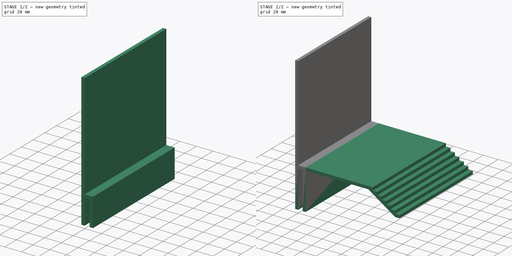
[diagram: build sequence overview — one tinted view per stage of 2, left to right]
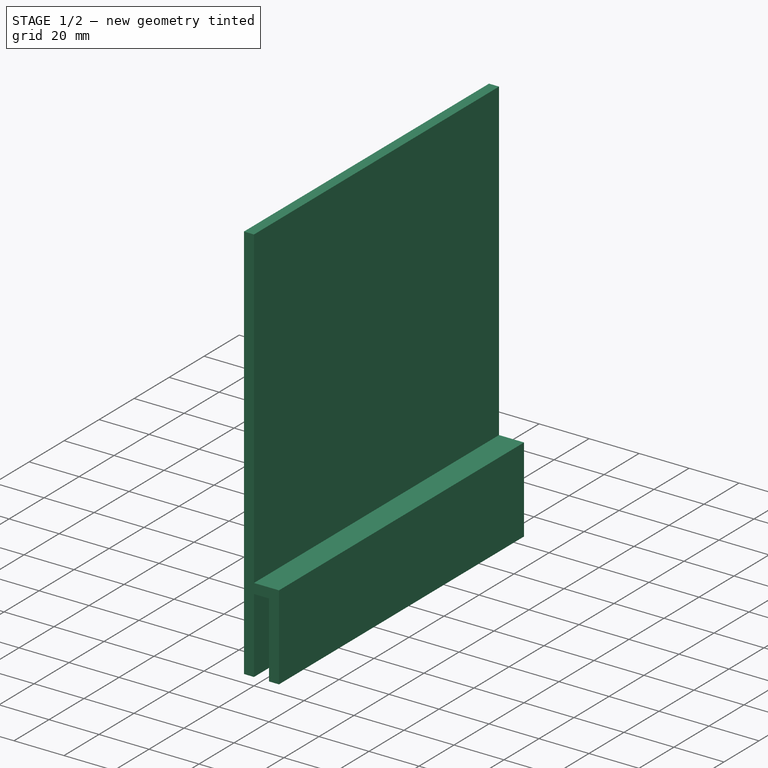
[diagram: stage 1 of 2 — iso view after this stage's code; geometry added in this stage tinted green]
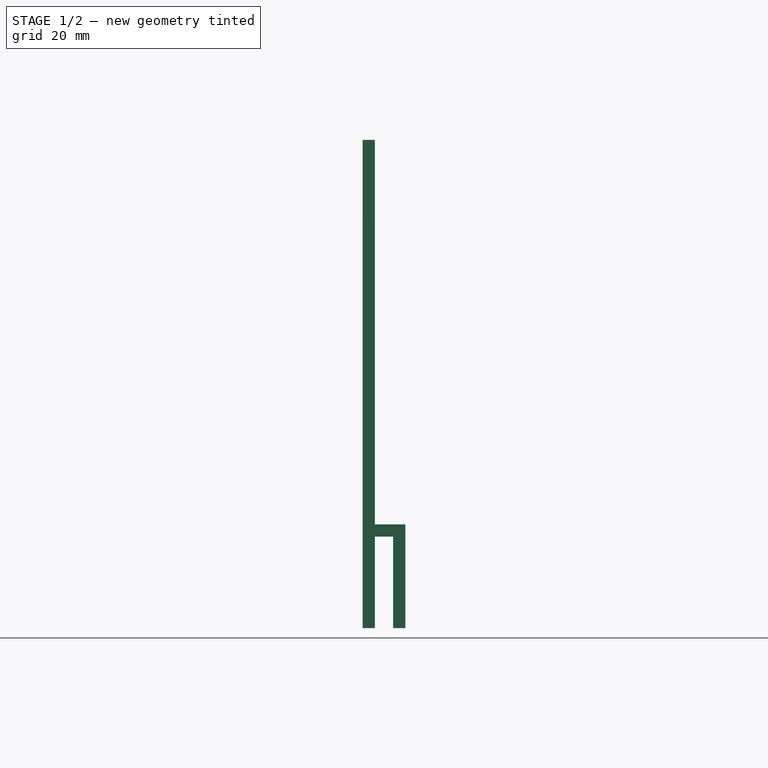
[diagram: stage 1 of 2 — front view after this stage's code; geometry added in this stage tinted green]
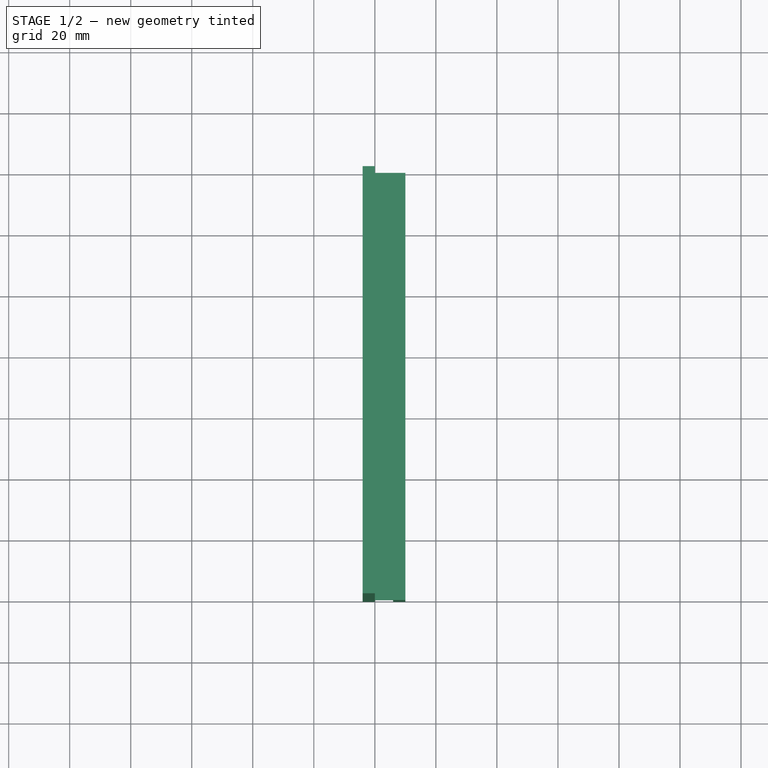
[diagram: stage 1 of 2 — top view after this stage's code; geometry added in this stage tinted green]
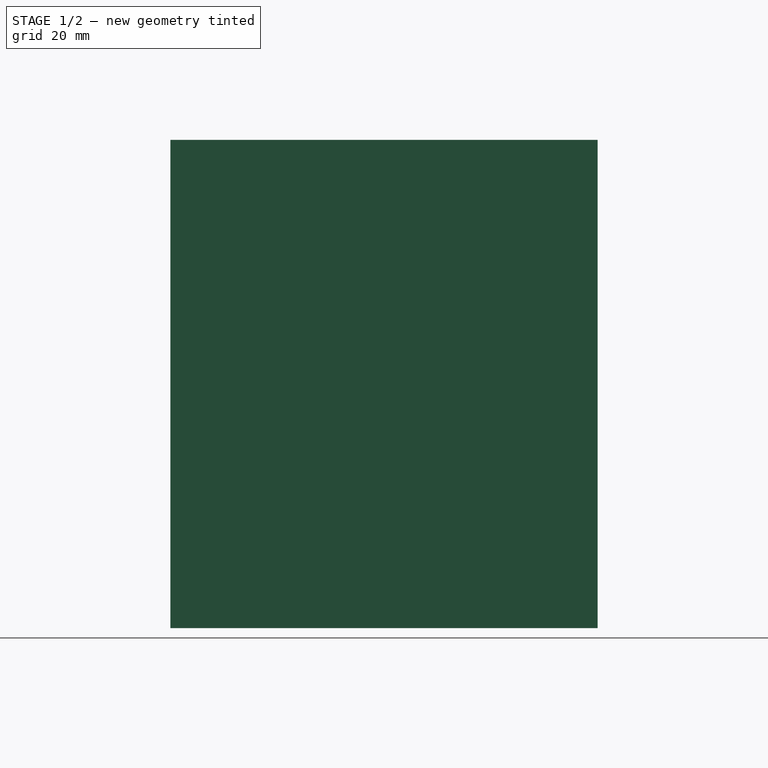
[diagram: stage 1 of 2 — right view after this stage's code; geometry added in this stage tinted green]
FCSTD DOCUMENT  (FreeCAD 0.21R33771 (Git))
Label: turtle_safer
License: All rights reserved
LicenseURL: http://en.wikipedia.org/wiki/All_rights_reserved
objects: Sketcher::SketchObject×2, PartDesign::Pad×2, PartDesign::Body×2
note: 8 computed .brp shape members not serialized (recipe doc carries the construction recipe); baked Part::Feature solids carry a one-line shape summary decoded from their .brp

FEATURE [PartDesign::Body] Body  label="turtle_with_food"
  Group = -> [Sketch,Pad]
  Origin = -> Origin
  Tip = -> Pad
FEATURE [Sketcher::SketchObject] Sketch001
  FullyConstrained = true
  MapMode = 5
  Placement = pos=(0,0,0) rot=(1,0,0;1.5708rad)
  Support = -> [XZ_Plane001]
  sketch-geometry (12):
    g0: LineSegment StartX=0 StartY=130 StartZ=0 EndX=-4 EndY=130 EndZ=0
    g1: LineSegment StartX=-4 StartY=130 StartZ=0 EndX=-4 EndY=-30 EndZ=0
    g2: LineSegment StartX=-4 StartY=-30 StartZ=0 EndX=0 EndY=-30 EndZ=0
    g3: LineSegment StartX=0 StartY=-30 StartZ=0 EndX=0 EndY=0 EndZ=0
    g4: LineSegment StartX=6 StartY=0 StartZ=0 EndX=6 EndY=-30 EndZ=0
    g5: LineSegment StartX=6 StartY=-30 StartZ=0 EndX=10 EndY=-30 EndZ=0
    g6: LineSegment StartX=10 StartY=-30 StartZ=0 EndX=10 EndY=0 EndZ=0
    g7: LineSegment StartX=0 StartY=0 StartZ=0 EndX=6 EndY=0 EndZ=0
    g8: GeomPoint X=0 Y=0 Z=0
    g9: LineSegment StartX=0 StartY=130 StartZ=0 EndX=0 EndY=4 EndZ=0
    g10: LineSegment StartX=10 StartY=0 StartZ=0 EndX=10 EndY=4 EndZ=0
    g11: LineSegment StartX=0 StartY=4 StartZ=0 EndX=10 EndY=4 EndZ=0
  constraints (33):
    c: PointOnObject(g0,g-2)
    c: Horizontal(g0)
    c: Coincident(g0,g1)
    c: Vertical(g1)
    c: Coincident(g1,g2)
    c: PointOnObject(g2,g-2)
    c: Coincident(g2,g3)
    c: Coincident(g3,g-1)
    c: PointOnObject(g4,g-1)
    c: Vertical(g4)
    c: Coincident(g4,g5)
    c: Coincident(g5,g6)
    c: Vertical(g6)
    c: Equal(g0,g2)
    c: Equal(g2,g5)
    c: Horizontal(g5)
    c: DistanceX(g2,g2) = 4
    c: Coincident(g7,g3)
    c: Coincident(g7,g4)
    c: DistanceX(g7,g7) = 6
    c: DistanceY(g4,g4) = 30
    c: Equal(g3,g4)
    c: DistanceY(g1,g1) = 160
    c: Coincident(g8,g3)
    c: DistanceY(g3,g9) = 4
    c: Coincident(g9,g0)
    c: Vertical(g9)
    c: Horizontal(g6,g4)
    c: Coincident(g10,g6)
    c: Vertical(g10)
    c: Coincident(g11,g9)
    c: Coincident(g11,g10)
    c: Horizontal(g11)
FEATURE [PartDesign::Pad] Pad001
  Direction = (0,-1,-2e-16)
  Length = 140
  Length2 = 10
  Placement = pos=(0,0,0) rot=(1,0,0;1.5708rad)
  Profile = -> Sketch001
  ReferenceAxis = -> Sketch001 [N_Axis]
  Type = 0
FEATURE [PartDesign::Body] Body001  label="safer"
  Group = -> [Sketch001,Pad001]
  Origin = -> Origin001
  Tip = -> Pad001
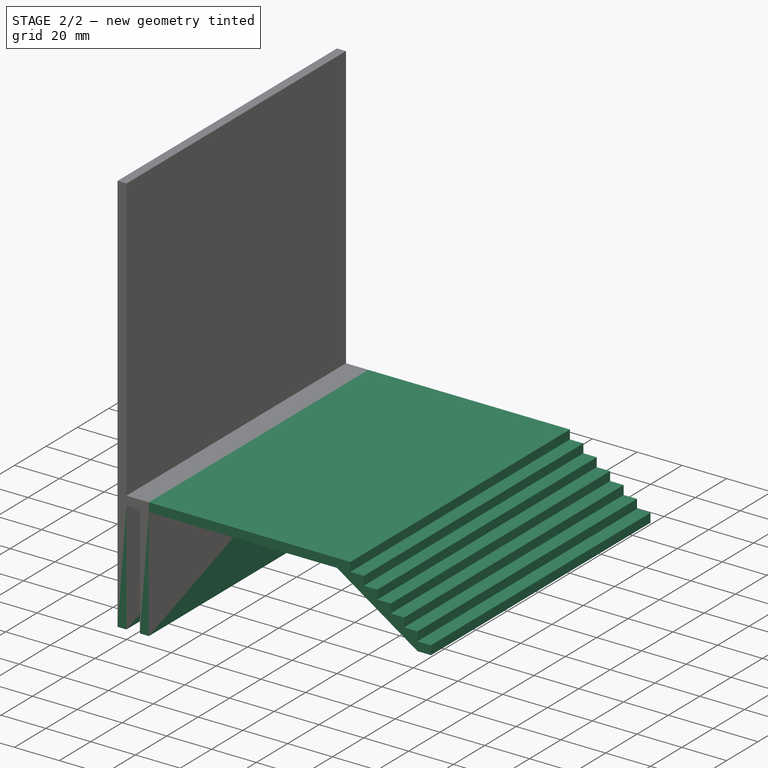
[diagram: stage 2 of 2 — iso view after this stage's code; geometry added in this stage tinted green]
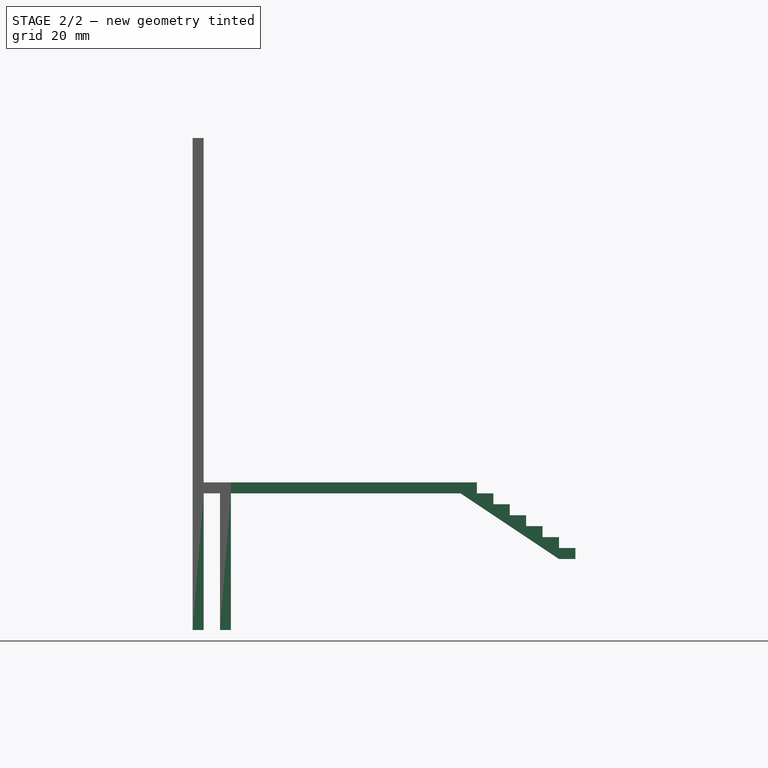
[diagram: stage 2 of 2 — front view after this stage's code; geometry added in this stage tinted green]
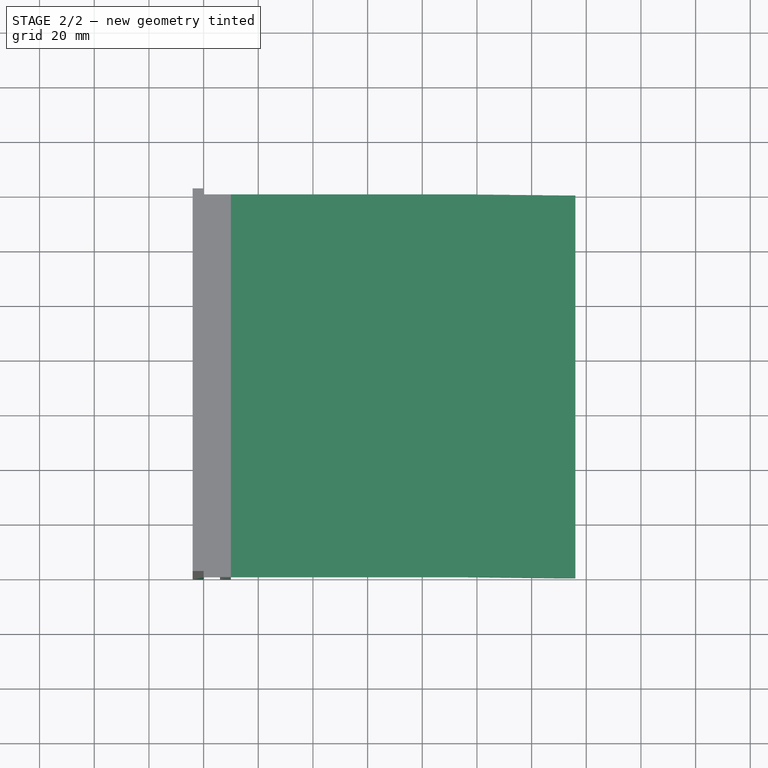
[diagram: stage 2 of 2 — top view after this stage's code; geometry added in this stage tinted green]
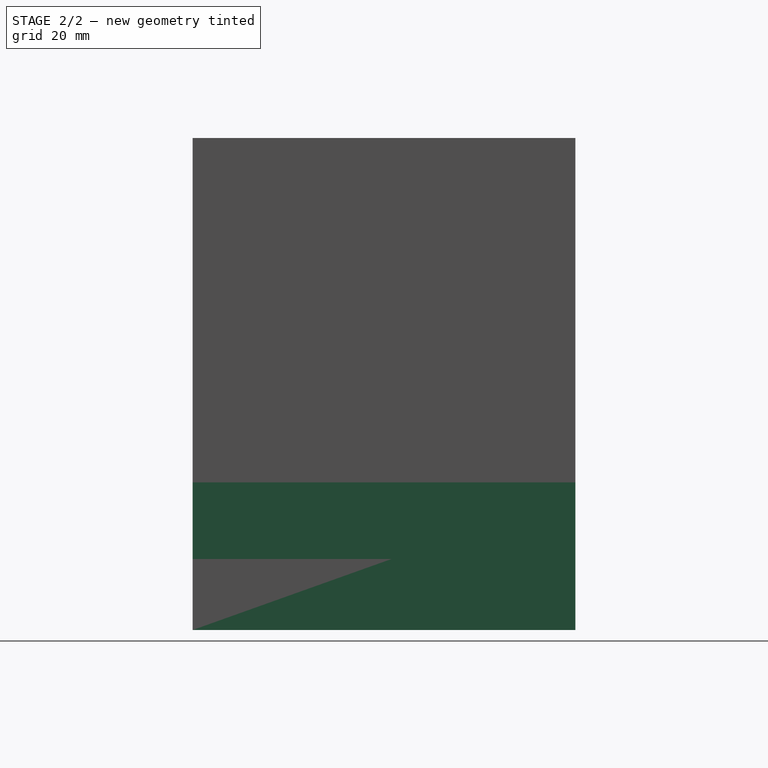
[diagram: stage 2 of 2 — right view after this stage's code; geometry added in this stage tinted green]
FEATURE [Sketcher::SketchObject] Sketch
  FullyConstrained = true
  MapMode = 5
  Placement = pos=(0,0,0) rot=(1,0,0;1.5708rad)
  Support = -> [XZ_Plane]
  sketch-geometry (28):
    g0: LineSegment StartX=0 StartY=110 StartZ=0 EndX=-4 EndY=110 EndZ=0
    g1: LineSegment StartX=-4 StartY=110 StartZ=0 EndX=-4 EndY=-50 EndZ=0
    g2: LineSegment StartX=-4 StartY=-50 StartZ=0 EndX=0 EndY=-50 EndZ=0
    g3: LineSegment StartX=0 StartY=-50 StartZ=0 EndX=0 EndY=0 EndZ=0
    g4: LineSegment StartX=6 StartY=0 StartZ=0 EndX=6 EndY=-50 EndZ=0
    g5: LineSegment StartX=6 StartY=-50 StartZ=0 EndX=10 EndY=-50 EndZ=0
    g6: LineSegment StartX=10 StartY=-50 StartZ=0 EndX=10 EndY=0 EndZ=0
    g7: LineSegment StartX=0 StartY=0 StartZ=0 EndX=6 EndY=0 EndZ=0
    g8: LineSegment StartX=100 StartY=4 StartZ=0 EndX=100 EndY=0 EndZ=0
    g9: LineSegment StartX=100 StartY=0 StartZ=0 EndX=106 EndY=0 EndZ=0
    g10: LineSegment StartX=106 StartY=0 StartZ=0 EndX=106 EndY=-4 EndZ=0
    g11: LineSegment StartX=106 StartY=-4 StartZ=0 EndX=112 EndY=-4 EndZ=0
    g12: LineSegment StartX=112 StartY=-4 StartZ=0 EndX=112 EndY=-8 EndZ=0
    g13: LineSegment StartX=112 StartY=-8 StartZ=0 EndX=118 EndY=-8 EndZ=0
    g14: LineSegment StartX=118 StartY=-8 StartZ=0 EndX=118 EndY=-12 EndZ=0
    g15: LineSegment StartX=118 StartY=-12 StartZ=0 EndX=124 EndY=-12 EndZ=0
    g16: LineSegment StartX=124 StartY=-12 StartZ=0 EndX=124 EndY=-16 EndZ=0
    g17: LineSegment StartX=124 StartY=-16 StartZ=0 EndX=130 EndY=-16 EndZ=0
    g18: LineSegment StartX=130 StartY=-16 StartZ=0 EndX=130 EndY=-20 EndZ=0
    g19: LineSegment StartX=130 StartY=-20 StartZ=0 EndX=136 EndY=-20 EndZ=0
    g20: LineSegment StartX=136 StartY=-20 StartZ=0 EndX=136 EndY=-24 EndZ=0
    g21: LineSegment StartX=136 StartY=-24 StartZ=0 EndX=130 EndY=-24 EndZ=0
    g22: LineSegment StartX=130 StartY=-24 StartZ=0 EndX=94 EndY=-3.6e-15 EndZ=0
    g23: GeomPoint X=0 Y=0 Z=0
    g24: LineSegment StartX=0 StartY=110 StartZ=0 EndX=0 EndY=4 EndZ=0
    g25: LineSegment StartX=0 StartY=4 StartZ=0 EndX=10 EndY=4 EndZ=0
    g26: LineSegment StartX=10 StartY=4 StartZ=0 EndX=100 EndY=4 EndZ=0
    g27: LineSegment StartX=10 StartY=0 StartZ=0 EndX=94 EndY=0 EndZ=0
  constraints (81):
    c: PointOnObject(g0,g-2)
    c: Horizontal(g0)
    c: Coincident(g0,g1)
    c: Vertical(g1)
    c: Coincident(g1,g2)
    c: PointOnObject(g2,g-2)
    c: Coincident(g2,g3)
    c: Coincident(g3,g-1)
    c: PointOnObject(g4,g-1)
    c: Vertical(g4)
    c: Coincident(g4,g5)
    c: Coincident(g5,g6)
    c: Vertical(g6)
    c: Equal(g0,g2)
    c: Equal(g2,g5)
    c: Horizontal(g5)
    c: DistanceX(g2,g2) = 4
    c: Coincident(g7,g3)
    c: Coincident(g7,g4)
    c: DistanceX(g7,g7) = 6
    c: DistanceY(g4,g4) = 50
    c: Equal(g3,g4)
    c: DistanceY(g1,g1) = 160
    c: Coincident(g8,g9)
    c: Coincident(g9,g10)
    c: Vertical(g10)
    c: Coincident(g10,g11)
    c: Horizontal(g11)
    c: Coincident(g11,g12)
    c: Coincident(g12,g13)
    c: Horizontal(g13)
    c: Coincident(g13,g14)
    c: Coincident(g14,g15)
    c: Coincident(g15,g16)
    c: Vertical(g16)
    c: Coincident(g16,g17)
    c: Coincident(g17,g18)
    c: Coincident(g18,g19)
    c: Horizontal(g19)
    c: Coincident(g19,g20)
    c: Vertical(g20)
    c: Coincident(g20,g21)
    c: Horizontal(g21)
    c: Coincident(g21,g22)
    c: Vertical(g8)
    c: Vertical(g12)
    c: Vertical(g14)
    c: Vertical(g18)
    c: Horizontal(g17)
    c: Horizontal(g15)
    c: Horizontal(g9)
    c: DistanceY(g8,g8) = 4
    c: DistanceY(g10,g10) = 4
    c: DistanceY(g12,g12) = 4
    c: DistanceY(g14,g14) = 4
    c: DistanceY(g16,g16) = 4
    c: DistanceY(g18,g18) = 4
    c: DistanceY(g20,g20) = 4
    c: Equal(g19,g17)
    c: Equal(g17,g15)
    c: Equal(g15,g13)
    c: Equal(g13,g11)
    c: Equal(g11,g9)
    c: Vertical(g21,g18)
    c: DistanceX(g19,g19) = 6
    c: Coincident(g23,g3)
    c: DistanceY(g3,g24) = 4
    c: Coincident(g24,g0)
    c: Vertical(g24)
    c: DistanceX(g24,g8) = 100
    c: Horizontal(g6,g4)
    c: DistanceX(g22,g8) = 6
    c: Coincident(g25,g24)
    c: Horizontal(g25)
    c: Coincident(g26,g25)
    c: Coincident(g26,g8)
    c: Horizontal(g26)
    c: Coincident(g27,g6)
    c: Coincident(g27,g22)
    c: Horizontal(g27)
    c: Vertical(g25,g6)
FEATURE [PartDesign::Pad] Pad
  Direction = (0,-1,-2e-16)
  Length = 140
  Length2 = 10
  Placement = pos=(0,0,0) rot=(1,0,0;1.5708rad)
  Profile = -> Sketch
  ReferenceAxis = -> Sketch [N_Axis]
  Type = 0
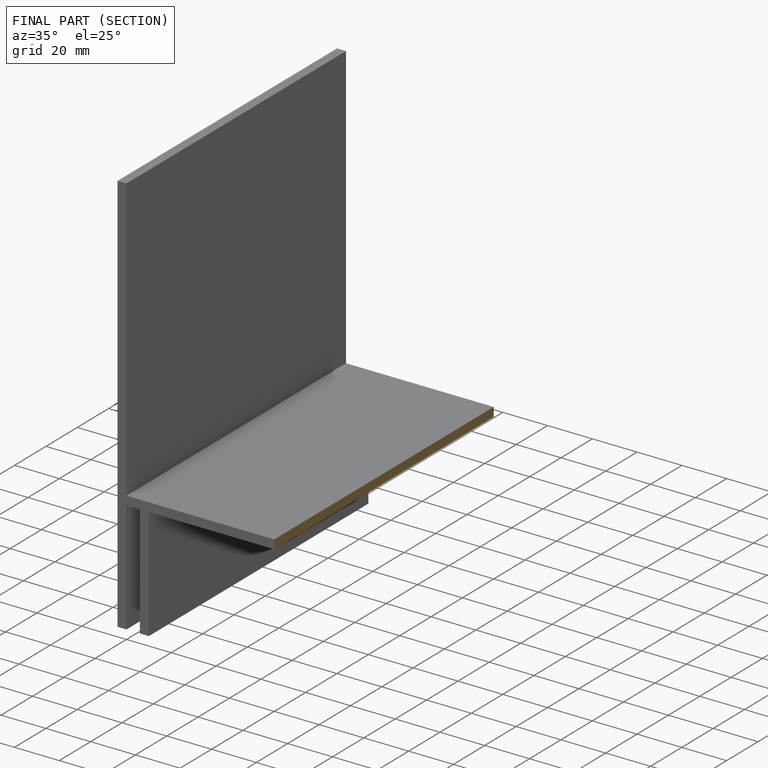
[diagram: finished part — half-section view (interior)]
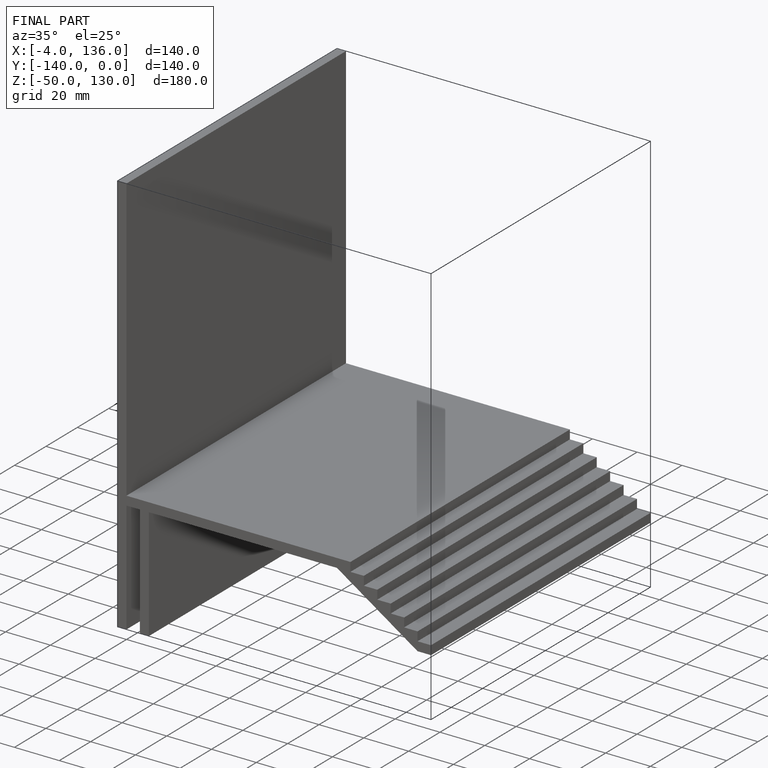
[diagram: finished part — iso view with bounding-box wireframe]
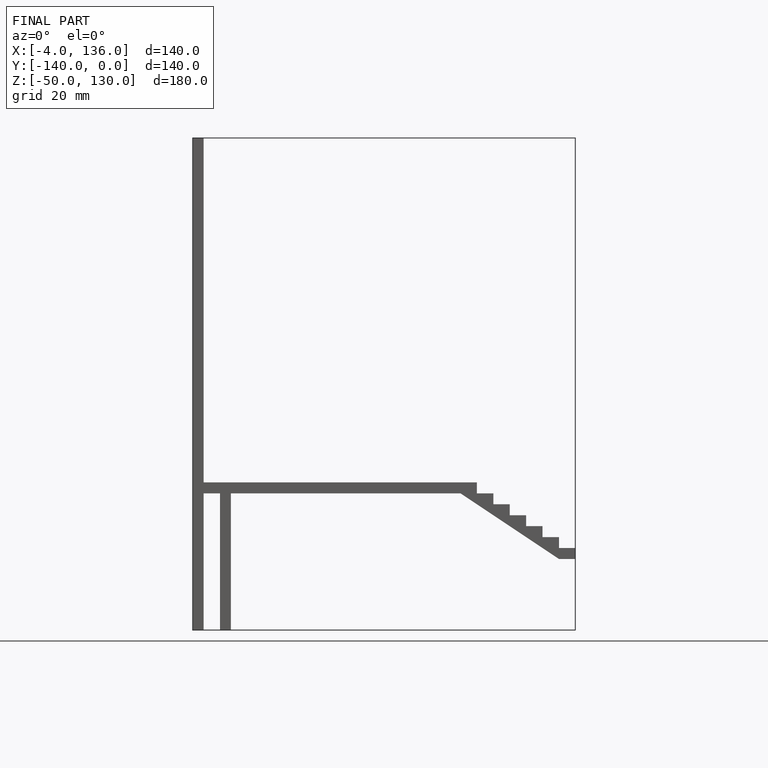
[diagram: finished part — front view with bounding-box wireframe]
